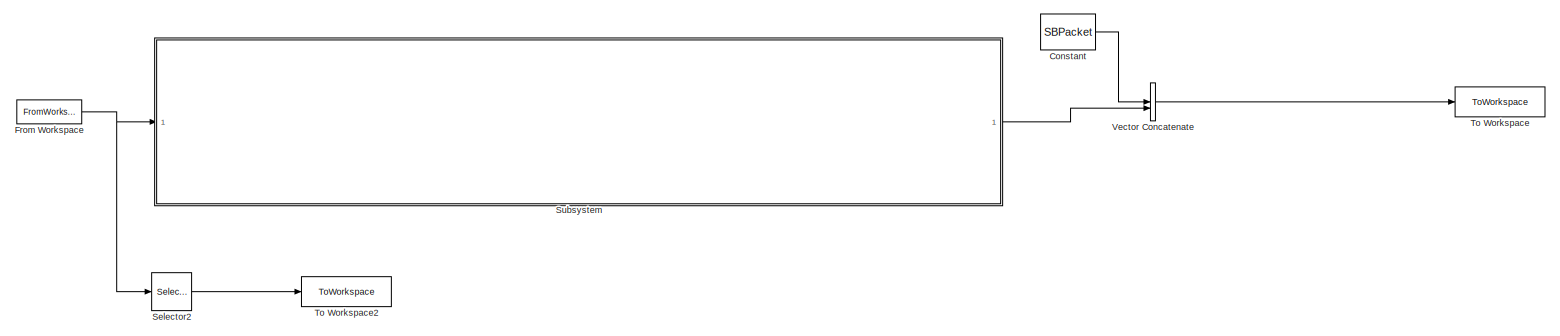
[diagram: root canvas - part 1/1, most of the canvas]
MODEL slx_a897710d31dd
KIND model
CONFIG AbsTol = auto
CONFIG EnableMultiTasking = off
CONFIG FixedStep = 1
CONFIG MaxStep = auto
CONFIG MinStep = auto
CONFIG RelTol = 1e-3
CONFIG SampleTimeConstraint = Unconstrained
CONFIG SolverName = FixedStepAuto
CONFIG StartTime = 0.0
CONFIG StopTime = 0
BLOCK [Constant] Constant
  Value = SBPacket
BLOCK [FromWorkspace] From Workspace
  VariableName = DFP
BLOCK [Selector] Selector2
  IndexOptions = Index vector (dialog)
  Indices = [201:206]
  OutputSizes = 1
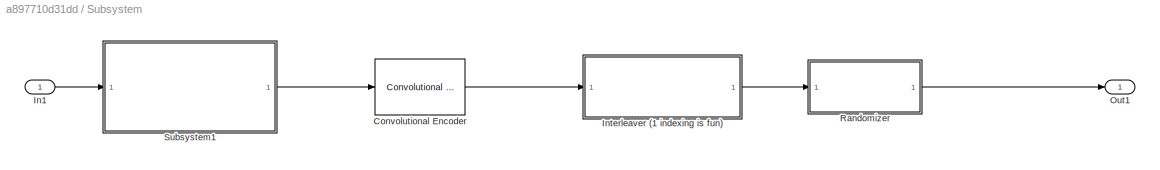
BLOCK [SubSystem] Subsystem
BLOCK [Reference] Subsystem/Convolutional Encoder  REF=commcnvcod2/Convolutional
Encoder
  LibrarySourceBlock = commhdlcnvcod/Convolutional\nEncoder
  SourceBlock = commcnvcod2/Convolutional\nEncoder
  SourceType = Convolutional Encoder
BLOCK [Inport] Subsystem/In1
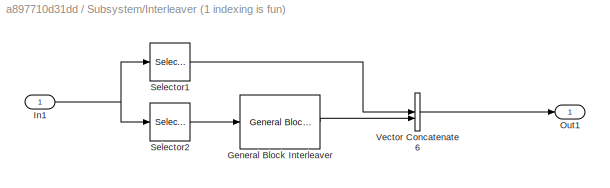
BLOCK [SubSystem] Subsystem/Interleaver (1 indexing is fun)
BLOCK [Reference] Subsystem/Interleaver (1 indexing is fun)/General Block Interleaver  REF=commblkintrlv2/General Block
Interleaver
  SourceBlock = commblkintrlv2/General Block\nInterleaver
  SourceType = General Block Interleaver
  StatePerturbationForJacobian = 1.0e-05
BLOCK [Inport] Subsystem/Interleaver (1 indexing is fun)/In1
BLOCK [Outport] Subsystem/Interleaver (1 indexing is fun)/Out1
BLOCK [Selector] Subsystem/Interleaver (1 indexing is fun)/Selector1
  IndexOptions = Index vector (dialog)
  Indices = [1]
  OutputSizes = 1
BLOCK [Selector] Subsystem/Interleaver (1 indexing is fun)/Selector2
  IndexOptions = Index vector (dialog)
  Indices = [2:368]
  OutputSizes = 1
BLOCK [Concatenate] Subsystem/Interleaver (1 indexing is fun)/Vector Concatenate6
BLOCK [Outport] Subsystem/Out1
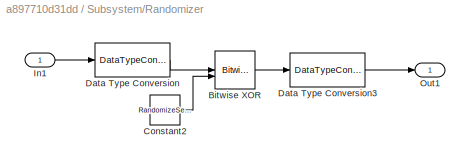
BLOCK [SubSystem] Subsystem/Randomizer
BLOCK [Reference] Subsystem/Randomizer/Bitwise XOR  REF=simulink/Logic and Bit
Operations/Bitwise
Operator
  SourceBlock = simulink/Logic and Bit\nOperations/Bitwise\nOperator
  SourceType = Bitwise Operator
BLOCK [Constant] Subsystem/Randomizer/Constant2
  Value = RandomizeSequence
BLOCK [DataTypeConversion] Subsystem/Randomizer/Data Type Conversion
  OutDataTypeStr = boolean
  RndMeth = Floor
  SaturateOnIntegerOverflow = off
BLOCK [DataTypeConversion] Subsystem/Randomizer/Data Type Conversion3
  OutDataTypeStr = double
  RndMeth = Floor
  SaturateOnIntegerOverflow = off
BLOCK [Inport] Subsystem/Randomizer/In1
BLOCK [Outport] Subsystem/Randomizer/Out1
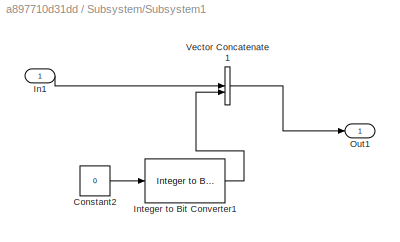
BLOCK [SubSystem] Subsystem/Subsystem1
BLOCK [Constant] Subsystem/Subsystem1/Constant2
  Value = 0
BLOCK [Inport] Subsystem/Subsystem1/In1
BLOCK [Reference] Subsystem/Subsystem1/Integer to Bit Converter1  REF=simulink/Logic and Bit
Operations/Integer to Bit
Converter
  SourceBlock = simulink/Logic and Bit\nOperations/Integer to Bit\nConverter
  SourceType = Integer to Bit Converter
BLOCK [Outport] Subsystem/Subsystem1/Out1
BLOCK [Concatenate] Subsystem/Subsystem1/Vector Concatenate1
BLOCK [ToWorkspace] To Workspace
  FixptAsFi = on
  MaxDataPoints = inf
  SampleTime = -1
  Save2DSignal = 2-D array (concatenate along first dimension)
  VariableName = Packet
BLOCK [ToWorkspace] To Workspace2
  FixptAsFi = on
  MaxDataPoints = inf
  SampleTime = -1
  Save2DSignal = 2-D array (concatenate along first dimension)
  VariableName = MetaData
BLOCK [Concatenate] Vector Concatenate
LINE Constant:1 -> Vector Concatenate:1
NET From Workspace:1 -> Selector2:1, Subsystem:1
LINE Selector2:1 -> To Workspace2:1
LINE Subsystem/Convolutional Encoder:1 -> Subsystem/Interleaver (1 indexing is fun):1
LINE Subsystem/In1:1 -> Subsystem/Subsystem1:1
LINE Subsystem/Interleaver (1 indexing is fun)/General Block Interleaver:1 -> Subsystem/Interleaver (1 indexing is fun)/Vector Concatenate6:2
NET Subsystem/Interleaver (1 indexing is fun)/In1:1 -> Subsystem/Interleaver (1 indexing is fun)/Selector1:1, Subsystem/Interleaver (1 indexing is fun)/Selector2:1
LINE Subsystem/Interleaver (1 indexing is fun)/Selector1:1 -> Subsystem/Interleaver (1 indexing is fun)/Vector Concatenate6:1
LINE Subsystem/Interleaver (1 indexing is fun)/Selector2:1 -> Subsystem/Interleaver (1 indexing is fun)/General Block Interleaver:1
LINE Subsystem/Interleaver (1 indexing is fun)/Vector Concatenate6:1 -> Subsystem/Interleaver (1 indexing is fun)/Out1:1
LINE Subsystem/Interleaver (1 indexing is fun):1 -> Subsystem/Randomizer:1
LINE Subsystem/Randomizer/Bitwise XOR:1 -> Subsystem/Randomizer/Data Type Conversion3:1
LINE Subsystem/Randomizer/Constant2:1 -> Subsystem/Randomizer/Bitwise XOR:2
LINE Subsystem/Randomizer/Data Type Conversion3:1 -> Subsystem/Randomizer/Out1:1
LINE Subsystem/Randomizer/Data Type Conversion:1 -> Subsystem/Randomizer/Bitwise XOR:1
LINE Subsystem/Randomizer/In1:1 -> Subsystem/Randomizer/Data Type Conversion:1
LINE Subsystem/Randomizer:1 -> Subsystem/Out1:1
LINE Subsystem/Subsystem1/Constant2:1 -> Subsystem/Subsystem1/Integer to Bit Converter1:1
LINE Subsystem/Subsystem1/In1:1 -> Subsystem/Subsystem1/Vector Concatenate1:1
LINE Subsystem/Subsystem1/Integer to Bit Converter1:1 -> Subsystem/Subsystem1/Vector Concatenate1:2
LINE Subsystem/Subsystem1/Vector Concatenate1:1 -> Subsystem/Subsystem1/Out1:1
LINE Subsystem/Subsystem1:1 -> Subsystem/Convolutional Encoder:1
LINE Subsystem:1 -> Vector Concatenate:2
LINE Vector Concatenate:1 -> To Workspace:1
note: NET lines group one-source signal fan-out (src -> all destinations, sorted); 1:1 wires keep LINE
